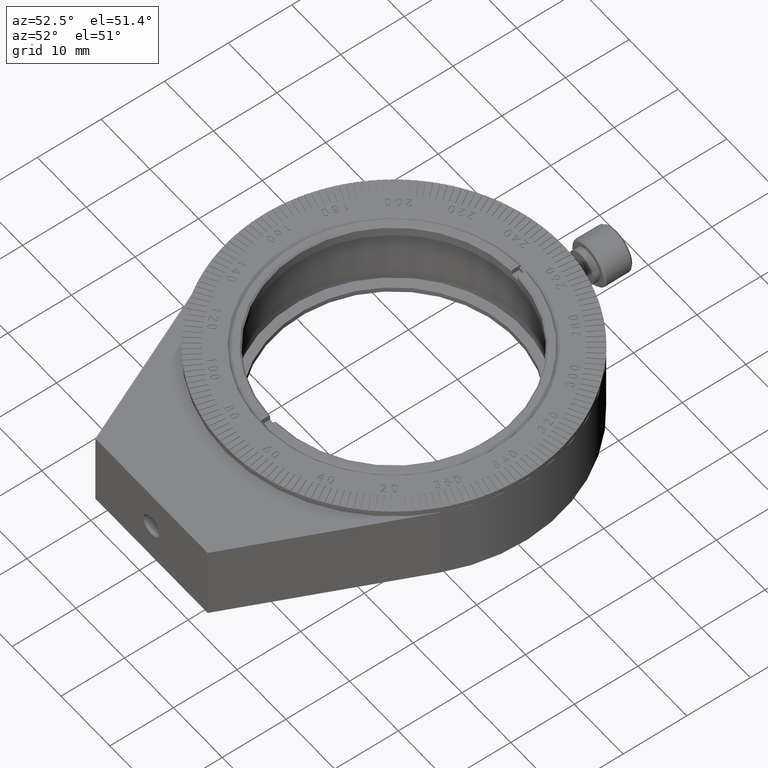
[diagram: clean part render]
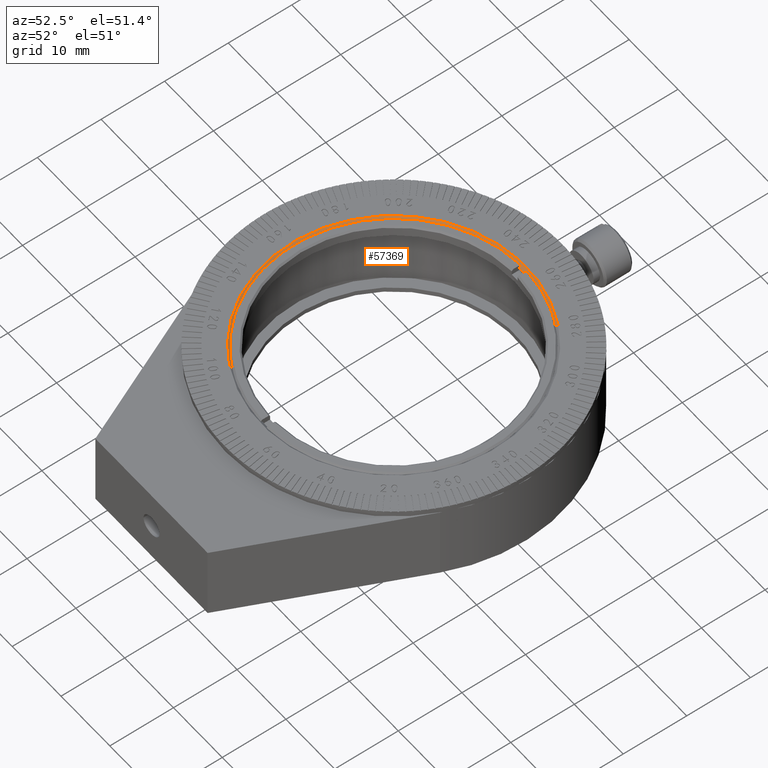
[diagram: same view with one face highlighted and labeled with its STEP entity id]
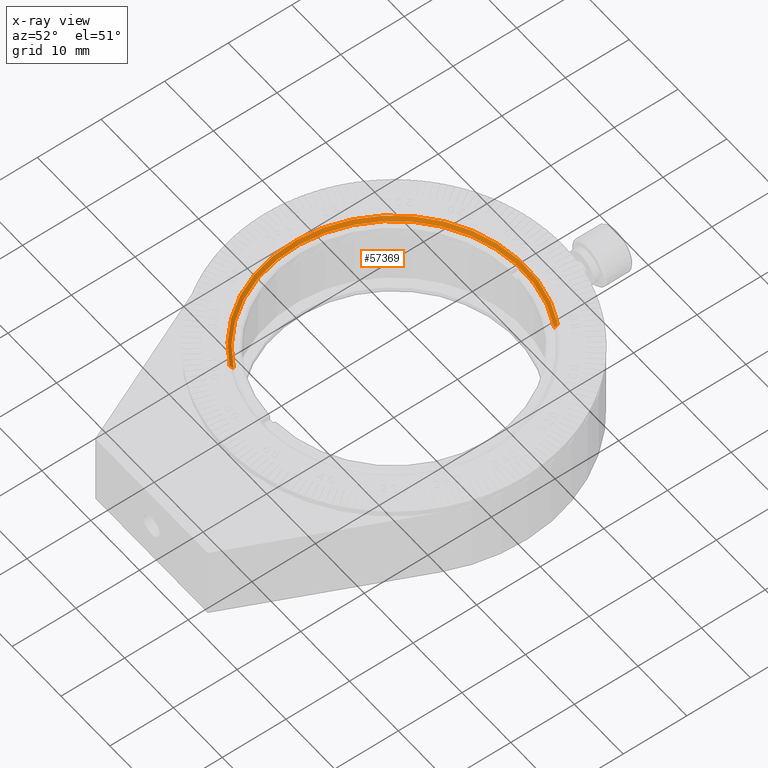
[diagram: x-ray of the same camera — body ghosted, the highlighted face saturated]
A machine part, auxiliary view. The second image highlights one B-rep face of the part: STEP entity #57369.
The next image is the same camera in x-ray: the body ghosted, the highlighted face saturated — about 0% of this face is hidden behind the body in this view.
In plain terms, the highlighted conical surface has half-angle 45 deg.
Its self-contained STEP definition (entity closure, byte-faithful):
#1867 = ORIENTED_EDGE ( 'NONE', *, *, #15742, .F. ) ;
#3208 = EDGE_LOOP ( 'NONE', ( #55667, #9503, #52397, #1867 ) ) ;
#5160 = CARTESIAN_POINT ( 'NONE',  ( 0.000000000000000000, 0.4999999999999726885, 0.000000000000000000 ) ) ;
#5426 = LINE ( 'NONE', #59101, #31597 ) ;
#5439 = DIRECTION ( 'NONE',  ( 0.000000000000000000, 0.000000000000000000, 1.000000000000000000 ) ) ;
#8317 = VERTEX_POINT ( 'NONE', #39548 ) ;
#8844 = CARTESIAN_POINT ( 'NONE',  ( 2.479909768273390300E-15, 0.4999999999999726885, -20.25000000000000000 ) ) ;
#9503 = ORIENTED_EDGE ( 'NONE', *, *, #47191, .T. ) ;
#9810 = CIRCLE ( 'NONE', #40391, 20.25000000000000000 ) ;
#15742 = EDGE_CURVE ( 'NONE', #8317, #27160, #5426, .T. ) ;
#19777 = VERTEX_POINT ( 'NONE', #8844 ) ;
#20627 = CARTESIAN_POINT ( 'NONE',  ( 2.479909768273390300E-15, 0.4999999999999726885, -20.25000000000000000 ) ) ;
#24597 = CARTESIAN_POINT ( 'NONE',  ( 0.000000000000000000, 1.000000000000000000, 0.000000000000000000 ) ) ;
#24634 = DIRECTION ( 'NONE',  ( 0.000000000000000000, 1.000000000000000000, 0.000000000000000000 ) ) ;
#27160 = VERTEX_POINT ( 'NONE', #61961 ) ;
#27354 = DIRECTION ( 'NONE',  ( 0.000000000000000000, 1.000000000000000000, 0.000000000000000000 ) ) ;
#29741 = CONICAL_SURFACE ( 'NONE', #35832, 20.25000000000000000, 0.7853981633974378429 ) ;
#29747 = FACE_OUTER_BOUND ( 'NONE', #3208, .T. ) ;
#30015 = DIRECTION ( 'NONE',  ( 0.000000000000000000, 0.7071067811865549002, 0.7071067811865401342 ) ) ;
#31597 = VECTOR ( 'NONE', #30015, 1000.000000000000000 ) ;
#33042 = VECTOR ( 'NONE', #39178, 1000.000000000000000 ) ;
#35192 = CARTESIAN_POINT ( 'NONE',  ( 2.541142108230759846E-15, 1.000000000000000000, -20.75000000000001776 ) ) ;
#35832 = AXIS2_PLACEMENT_3D ( 'NONE', #5160, #24634, #44131 ) ;
#39178 = DIRECTION ( 'NONE',  ( 8.659560562354842879E-17, 0.7071067811865549002, -0.7071067811865401342 ) ) ;
#39548 = CARTESIAN_POINT ( 'NONE',  ( 0.000000000000000000, 0.4999999999999726885, 20.25000000000000000 ) ) ;
#40391 = AXIS2_PLACEMENT_3D ( 'NONE', #51652, #27354, #45888 ) ;
#44131 = DIRECTION ( 'NONE',  ( 0.000000000000000000, 0.000000000000000000, 1.000000000000000000 ) ) ;
#45888 = DIRECTION ( 'NONE',  ( 0.000000000000000000, 0.000000000000000000, 1.000000000000000000 ) ) ;
#47191 = EDGE_CURVE ( 'NONE', #19777, #49192, #54500, .T. ) ;
#49192 = VERTEX_POINT ( 'NONE', #35192 ) ;
#49519 = EDGE_CURVE ( 'NONE', #27160, #49192, #60774, .T. ) ;
#50642 = EDGE_CURVE ( 'NONE', #19777, #8317, #9810, .T. ) ;
#51652 = CARTESIAN_POINT ( 'NONE',  ( 0.000000000000000000, 0.4999999999999726885, 0.000000000000000000 ) ) ;
#52397 = ORIENTED_EDGE ( 'NONE', *, *, #49519, .F. ) ;
#53687 = DIRECTION ( 'NONE',  ( -0.000000000000000000, -1.000000000000000000, -0.000000000000000000 ) ) ;
#54500 = LINE ( 'NONE', #20627, #33042 ) ;
#55667 = ORIENTED_EDGE ( 'NONE', *, *, #50642, .F. ) ;
#57369 = ADVANCED_FACE ( 'NONE', ( #29747 ), #29741, .F. ) ;
#57703 = AXIS2_PLACEMENT_3D ( 'NONE', #24597, #53687, #5439 ) ;
#59101 = CARTESIAN_POINT ( 'NONE',  ( 0.000000000000000000, 0.4999999999999726885, 20.25000000000000000 ) ) ;
#60774 = CIRCLE ( 'NONE', #57703, 20.75000000000001776 ) ;
#61961 = CARTESIAN_POINT ( 'NONE',  ( 0.000000000000000000, 1.000000000000000000, 20.75000000000001776 ) ) ;